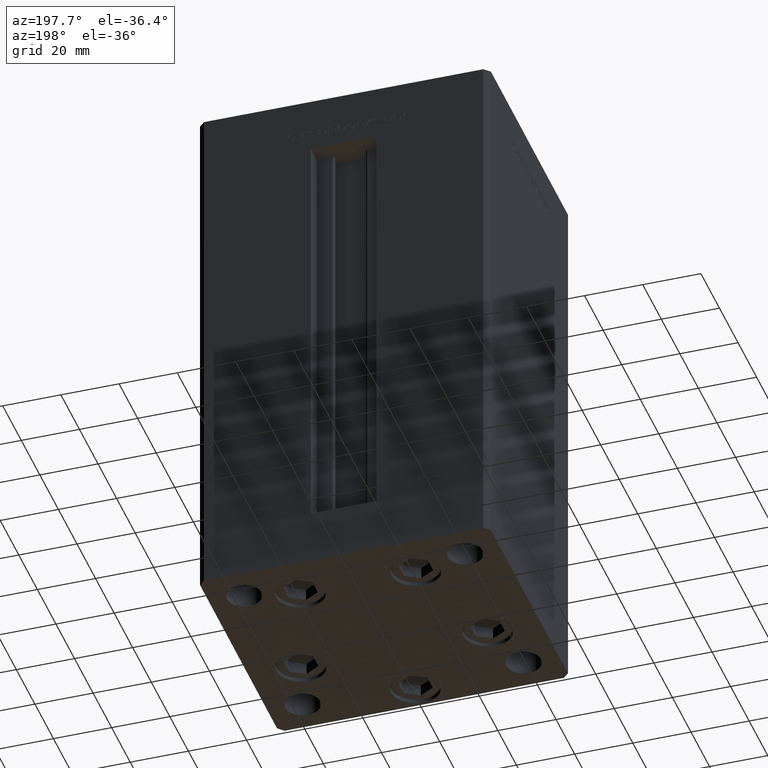
[diagram: clean part render]
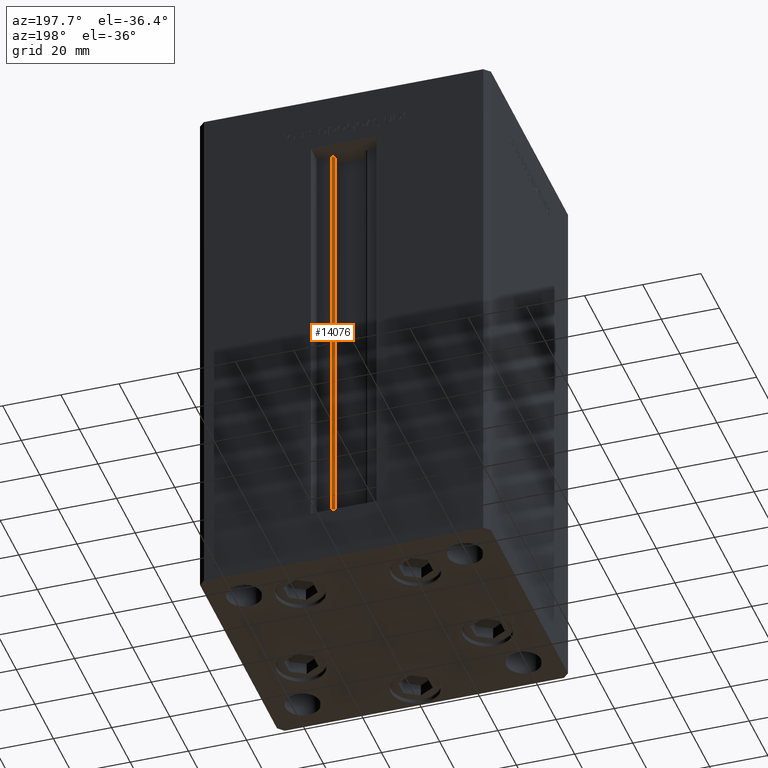
[diagram: same view with one face highlighted and labeled with its STEP entity id]
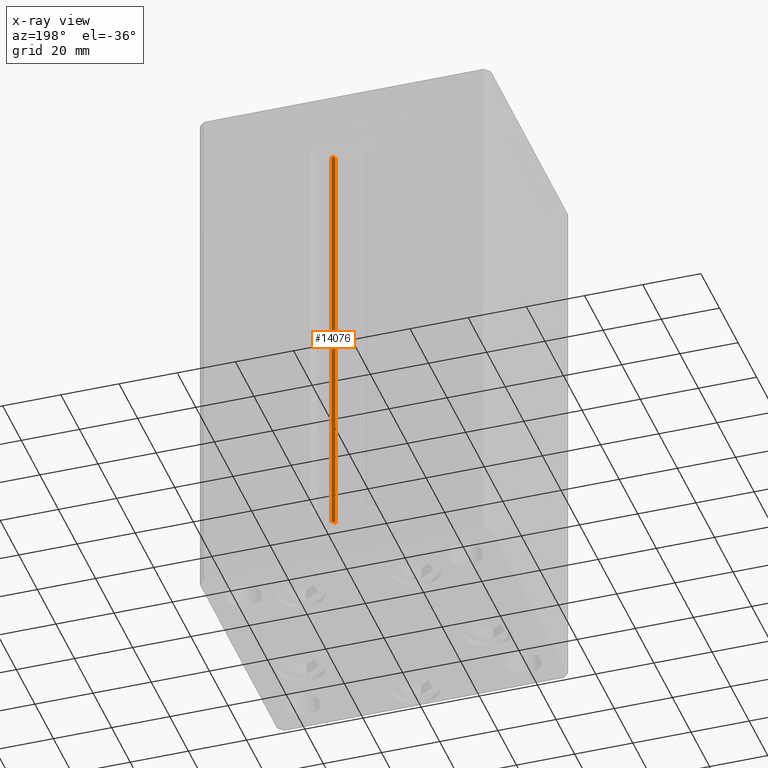
[diagram: x-ray of the same camera — body ghosted, the highlighted face saturated]
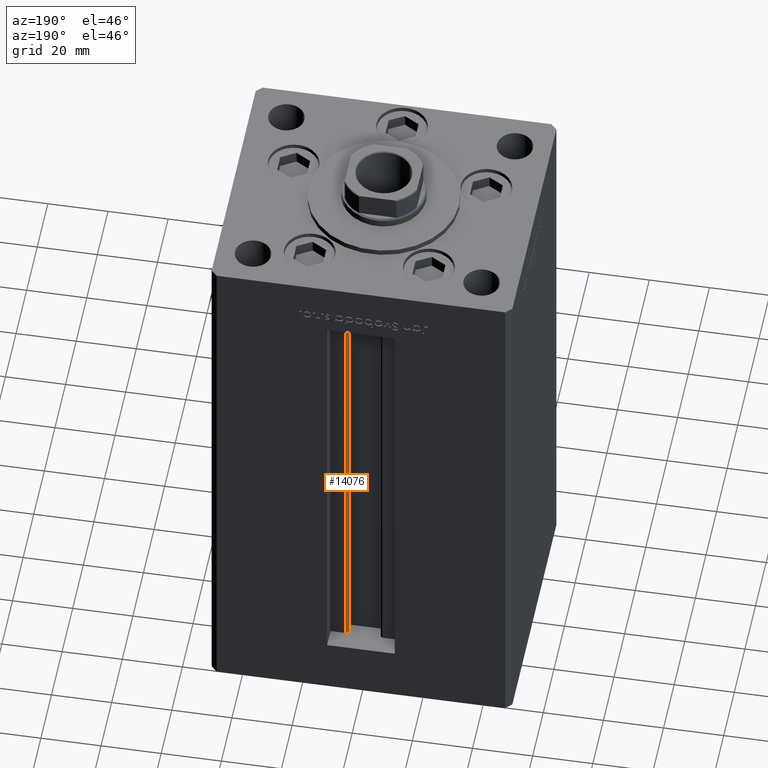
[diagram: same view with one face highlighted and labeled with its STEP entity id]
A machine part, auxiliary view. The second image highlights one B-rep face of the part: STEP entity #14076.
The next image is the same camera in x-ray: the body ghosted, the highlighted face saturated — about 0% of this face is hidden behind the body in this view.
A second angle (auxiliary view) of the same face is appended — the face is thin or edge-on in the first view.
In plain terms, the highlighted cylindrical surface (edge-blend (fillet) strip) has radius 0.9333 mm, axis along (0, 0, 1).
Its self-contained STEP definition (entity closure, byte-faithful):
#268 = DIRECTION ( 'NONE',  ( 1.000000000000000000, 0.000000000000000000, 0.000000000000000000 ) ) ;
#2277 = CARTESIAN_POINT ( 'NONE',  ( 5.375042956467945388, 35.59999999999898534, 0.000000000000000000 ) ) ;
#4565 = CIRCLE ( 'NONE', #34040, 0.9333333333340008142 ) ;
#13712 = VERTEX_POINT ( 'NONE', #25926 ) ;
#14076 = ADVANCED_FACE ( 'NONE', ( #27378 ), #31598, .T. ) ;
#18225 = CARTESIAN_POINT ( 'NONE',  ( 6.183333333333997928, 36.99999999999999289, 0.000000000000000000 ) ) ;
#18833 = CARTESIAN_POINT ( 'NONE',  ( 5.375042956467945388, 35.59999999999898534, 0.000000000000000000 ) ) ;
#19812 = EDGE_CURVE ( 'NONE', #47305, #43474, #39598, .T. ) ;
#20002 = VERTEX_POINT ( 'NONE', #35569 ) ;
#20047 = CARTESIAN_POINT ( 'NONE',  ( 6.183333333333997928, 36.06666666666598786, 148.5000000000000000 ) ) ;
#20149 = AXIS2_PLACEMENT_3D ( 'NONE', #47704, #47450, #32366 ) ;
#22321 = EDGE_CURVE ( 'NONE', #43474, #20002, #22721, .T. ) ;
#22454 = DIRECTION ( 'NONE',  ( 1.000000000000000000, 0.000000000000000000, 0.000000000000000000 ) ) ;
#22721 = LINE ( 'NONE', #18225, #49758 ) ;
#25926 = CARTESIAN_POINT ( 'NONE',  ( 5.375042956467942723, 35.59999999999898534, 148.5000000000000000 ) ) ;
#26665 = CARTESIAN_POINT ( 'NONE',  ( 6.183333333333997928, 36.99999999999999289, 0.000000000000000000 ) ) ;
#27378 = FACE_OUTER_BOUND ( 'NONE', #37734, .T. ) ;
#28128 = ORIENTED_EDGE ( 'NONE', *, *, #37786, .T. ) ;
#30322 = ORIENTED_EDGE ( 'NONE', *, *, #45075, .T. ) ;
#30438 = AXIS2_PLACEMENT_3D ( 'NONE', #37498, #50173, #22454 ) ;
#31598 = CYLINDRICAL_SURFACE ( 'NONE', #20149, 0.9333333333340008142 ) ;
#32366 = DIRECTION ( 'NONE',  ( 1.000000000000000000, 0.000000000000000000, 0.000000000000000000 ) ) ;
#34040 = AXIS2_PLACEMENT_3D ( 'NONE', #20047, #47791, #268 ) ;
#35113 = DIRECTION ( 'NONE',  ( -0.000000000000000000, -0.000000000000000000, 1.000000000000000000 ) ) ;
#35569 = CARTESIAN_POINT ( 'NONE',  ( 6.183333333333997928, 36.99999999999999289, 148.5000000000000000 ) ) ;
#37498 = CARTESIAN_POINT ( 'NONE',  ( 6.183333333333997928, 36.06666666666598786, 0.000000000000000000 ) ) ;
#37734 = EDGE_LOOP ( 'NONE', ( #39913, #51522, #30322, #28128 ) ) ;
#37786 = EDGE_CURVE ( 'NONE', #13712, #20002, #4565, .T. ) ;
#39598 = CIRCLE ( 'NONE', #30438, 0.9333333333340008142 ) ;
#39604 = VECTOR ( 'NONE', #41849, 1000.000000000000000 ) ;
#39913 = ORIENTED_EDGE ( 'NONE', *, *, #22321, .F. ) ;
#41849 = DIRECTION ( 'NONE',  ( -0.000000000000000000, -0.000000000000000000, 1.000000000000000000 ) ) ;
#43474 = VERTEX_POINT ( 'NONE', #26665 ) ;
#45075 = EDGE_CURVE ( 'NONE', #47305, #13712, #46070, .T. ) ;
#46070 = LINE ( 'NONE', #2277, #39604 ) ;
#47305 = VERTEX_POINT ( 'NONE', #18833 ) ;
#47450 = DIRECTION ( 'NONE',  ( -0.000000000000000000, -0.000000000000000000, 1.000000000000000000 ) ) ;
#47704 = CARTESIAN_POINT ( 'NONE',  ( 6.183333333333997928, 36.06666666666598786, 0.000000000000000000 ) ) ;
#47791 = DIRECTION ( 'NONE',  ( 0.000000000000000000, 0.000000000000000000, -1.000000000000000000 ) ) ;
#49758 = VECTOR ( 'NONE', #35113, 1000.000000000000000 ) ;
#50173 = DIRECTION ( 'NONE',  ( -0.000000000000000000, -0.000000000000000000, -1.000000000000000000 ) ) ;
#51522 = ORIENTED_EDGE ( 'NONE', *, *, #19812, .F. ) ;